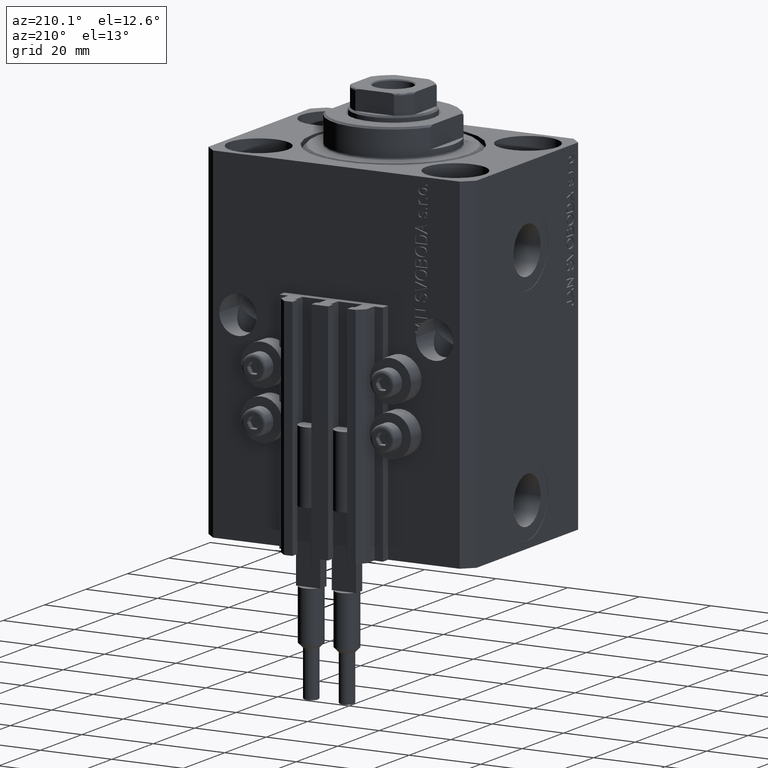
[diagram: clean part render]
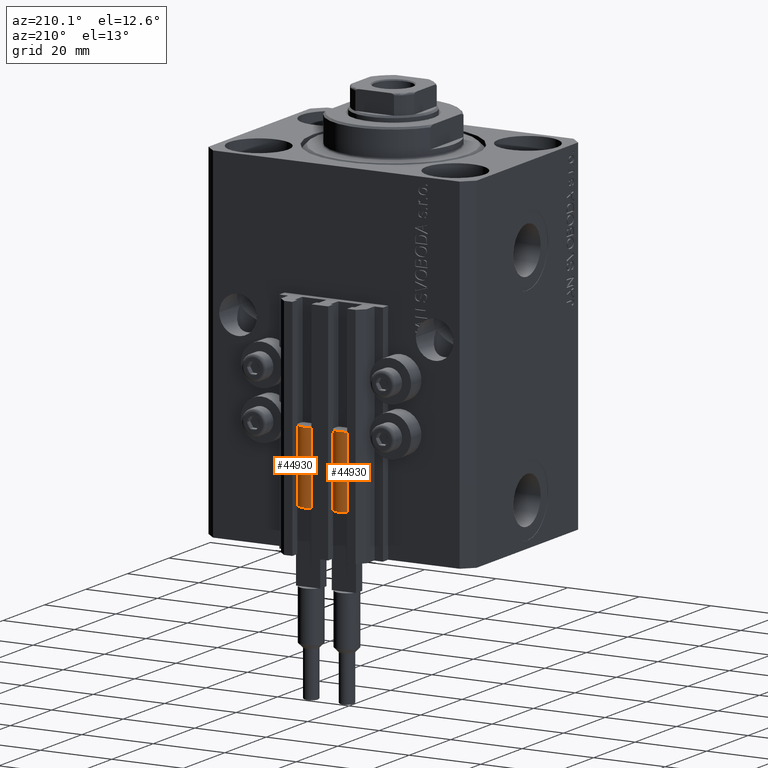
[diagram: same view with one multi-face feature highlighted, each face labeled with its STEP entity id]
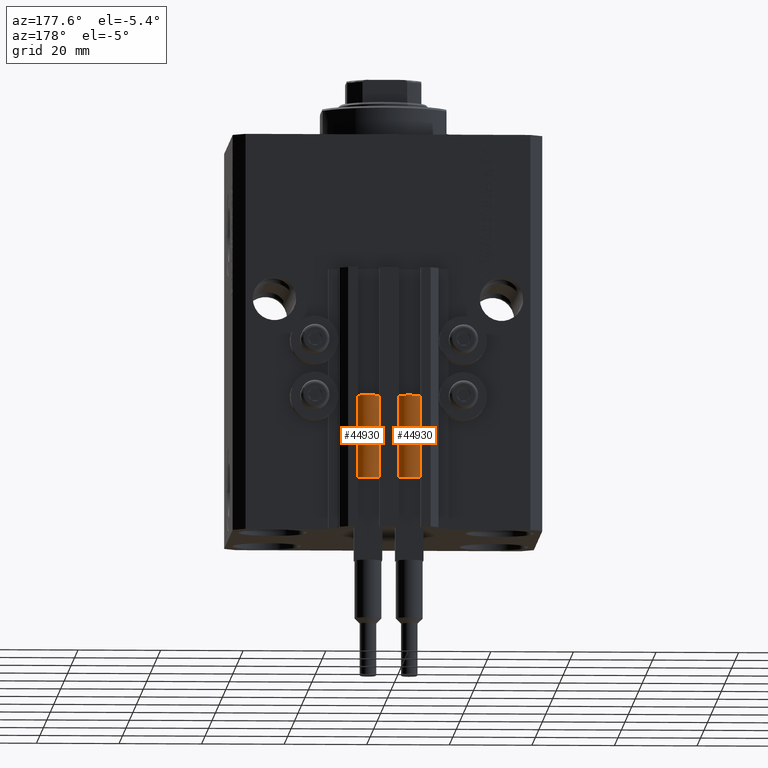
[diagram: same view with one multi-face feature highlighted, each face labeled with its STEP entity id]
A machine part, auxiliary view. The highlighted faces form ONE feature: a constant-radius fillet chain: 2 tangent blend faces with common blend radius 3.4 mm. The faces share edges in the B-rep.
A second angle (auxiliary view) of the same feature is appended — it is thin or edge-on in the first view.
Their STEP definitions:
[1] entity #44930 (Cylinder):
#716 = VERTEX_POINT ( 'NONE', #7705 ) ;
#726 = CIRCLE ( 'NONE', #30302, 3.400000000000000355 ) ;
#888 = VERTEX_POINT ( 'NONE', #24924 ) ;
#1338 = ORIENTED_EDGE ( 'NONE', *, *, #34608, .F. ) ;
#1823 = EDGE_CURVE ( 'NONE', #42656, #35309, #20357, .T. ) ;
#3081 = AXIS2_PLACEMENT_3D ( 'NONE', #9898, #35511, #16252 ) ;
#3598 = VECTOR ( 'NONE', #34260, 1000.000000000000000 ) ;
#3979 = CARTESIAN_POINT ( 'NONE',  ( 0.000000000000000000, 0.000000000000000000, 20.00000000000000000 ) ) ;
#5653 = VERTEX_POINT ( 'NONE', #27251 ) ;
#6998 = AXIS2_PLACEMENT_3D ( 'NONE', #29284, #32940, #21974 ) ;
#7705 = CARTESIAN_POINT ( 'NONE',  ( -3.051229260478471428, 1.500000000000000000, 20.00000000000000000 ) ) ;
#7917 = ORIENTED_EDGE ( 'NONE', *, *, #1823, .T. ) ;
#9693 = EDGE_CURVE ( 'NONE', #888, #5653, #36407, .T. ) ;
#9849 = EDGE_CURVE ( 'NONE', #39856, #716, #726, .T. ) ;
#9898 = CARTESIAN_POINT ( 'NONE',  ( 0.000000000000000000, 0.000000000000000000, 20.00000000000000000 ) ) ;
#14030 = EDGE_CURVE ( 'NONE', #35309, #5653, #41588, .T. ) ;
#14941 = CARTESIAN_POINT ( 'NONE',  ( 0.000000000000000000, 0.000000000000000000, 20.00000000000000000 ) ) ;
#16252 = DIRECTION ( 'NONE',  ( 1.000000000000000000, 0.000000000000000000, 0.000000000000000000 ) ) ;
#16704 = CARTESIAN_POINT ( 'NONE',  ( 3.400000000000000355, 4.163799117101001052E-16, 20.00000000000000000 ) ) ;
#18393 = CIRCLE ( 'NONE', #19947, 3.400000000000000355 ) ;
#19318 = CIRCLE ( 'NONE', #3081, 3.400000000000000355 ) ;
#19549 = DIRECTION ( 'NONE',  ( 1.000000000000000000, 0.000000000000000000, 0.000000000000000000 ) ) ;
#19947 = AXIS2_PLACEMENT_3D ( 'NONE', #3979, #22737, #47844 ) ;
#20160 = CARTESIAN_POINT ( 'NONE',  ( 3.400000000000000355, 4.163799117101001052E-16, 0.000000000000000000 ) ) ;
#20212 = VECTOR ( 'NONE', #47116, 1000.000000000000000 ) ;
#20357 = LINE ( 'NONE', #16704, #3598 ) ;
#21974 = DIRECTION ( 'NONE',  ( -1.000000000000000000, 0.000000000000000000, 0.000000000000000000 ) ) ;
#22737 = DIRECTION ( 'NONE',  ( 0.000000000000000000, 0.000000000000000000, 1.000000000000000000 ) ) ;
#23276 = EDGE_LOOP ( 'NONE', ( #24053, #7917, #35939, #39375, #1338, #47314 ) ) ;
#23849 = FACE_OUTER_BOUND ( 'NONE', #23276, .T. ) ;
#24053 = ORIENTED_EDGE ( 'NONE', *, *, #41741, .F. ) ;
#24924 = CARTESIAN_POINT ( 'NONE',  ( -3.399999999999999467, -4.915049848600952119E-16, 20.00000000000000000 ) ) ;
#25100 = DIRECTION ( 'NONE',  ( 0.000000000000000000, 0.000000000000000000, 1.000000000000000000 ) ) ;
#25339 = CARTESIAN_POINT ( 'NONE',  ( 0.000000000000000000, 0.000000000000000000, 0.000000000000000000 ) ) ;
#27251 = CARTESIAN_POINT ( 'NONE',  ( -3.400000000000000355, 0.000000000000000000, 0.000000000000000000 ) ) ;
#27378 = CARTESIAN_POINT ( 'NONE',  ( 3.051229260478471428, 1.500000000000000000, 20.00000000000000000 ) ) ;
#29284 = CARTESIAN_POINT ( 'NONE',  ( 0.000000000000000000, 0.000000000000000000, 20.00000000000000000 ) ) ;
#29323 = CARTESIAN_POINT ( 'NONE',  ( -3.400000000000000355, 0.000000000000000000, 20.00000000000000000 ) ) ;
#29704 = DIRECTION ( 'NONE',  ( 1.000000000000000000, 0.000000000000000000, 0.000000000000000000 ) ) ;
#30302 = AXIS2_PLACEMENT_3D ( 'NONE', #14941, #34173, #19549 ) ;
#32940 = DIRECTION ( 'NONE',  ( -0.000000000000000000, -0.000000000000000000, -1.000000000000000000 ) ) ;
#33060 = AXIS2_PLACEMENT_3D ( 'NONE', #25339, #25100, #29704 ) ;
#33119 = CARTESIAN_POINT ( 'NONE',  ( 3.400000000000000355, 0.000000000000000000, 20.00000000000000000 ) ) ;
#33419 = CYLINDRICAL_SURFACE ( 'NONE', #6998, 3.400000000000000355 ) ;
#34173 = DIRECTION ( 'NONE',  ( 0.000000000000000000, 0.000000000000000000, 1.000000000000000000 ) ) ;
#34260 = DIRECTION ( 'NONE',  ( -0.000000000000000000, -0.000000000000000000, -1.000000000000000000 ) ) ;
#34608 = EDGE_CURVE ( 'NONE', #716, #888, #18393, .T. ) ;
#35309 = VERTEX_POINT ( 'NONE', #20160 ) ;
#35511 = DIRECTION ( 'NONE',  ( 0.000000000000000000, 0.000000000000000000, 1.000000000000000000 ) ) ;
#35939 = ORIENTED_EDGE ( 'NONE', *, *, #14030, .T. ) ;
#36407 = LINE ( 'NONE', #29323, #20212 ) ;
#39375 = ORIENTED_EDGE ( 'NONE', *, *, #9693, .F. ) ;
#39856 = VERTEX_POINT ( 'NONE', #27378 ) ;
#41588 = CIRCLE ( 'NONE', #33060, 3.400000000000000355 ) ;
#41741 = EDGE_CURVE ( 'NONE', #42656, #39856, #19318, .T. ) ;
#42656 = VERTEX_POINT ( 'NONE', #33119 ) ;
#44930 = ADVANCED_FACE ( 'NONE', ( #23849 ), #33419, .T. ) ;
#47116 = DIRECTION ( 'NONE',  ( -0.000000000000000000, -0.000000000000000000, -1.000000000000000000 ) ) ;
#47314 = ORIENTED_EDGE ( 'NONE', *, *, #9849, .F. ) ;
#47844 = DIRECTION ( 'NONE',  ( 1.000000000000000000, 0.000000000000000000, 0.000000000000000000 ) ) ;
[2] entity #44930 (Cylinder):
#716 = VERTEX_POINT ( 'NONE', #7705 ) ;
#726 = CIRCLE ( 'NONE', #30302, 3.400000000000000355 ) ;
#888 = VERTEX_POINT ( 'NONE', #24924 ) ;
#1338 = ORIENTED_EDGE ( 'NONE', *, *, #34608, .F. ) ;
#1823 = EDGE_CURVE ( 'NONE', #42656, #35309, #20357, .T. ) ;
#3081 = AXIS2_PLACEMENT_3D ( 'NONE', #9898, #35511, #16252 ) ;
#3598 = VECTOR ( 'NONE', #34260, 1000.000000000000000 ) ;
#3979 = CARTESIAN_POINT ( 'NONE',  ( 0.000000000000000000, 0.000000000000000000, 20.00000000000000000 ) ) ;
#5653 = VERTEX_POINT ( 'NONE', #27251 ) ;
#6998 = AXIS2_PLACEMENT_3D ( 'NONE', #29284, #32940, #21974 ) ;
#7705 = CARTESIAN_POINT ( 'NONE',  ( -3.051229260478471428, 1.500000000000000000, 20.00000000000000000 ) ) ;
#7917 = ORIENTED_EDGE ( 'NONE', *, *, #1823, .T. ) ;
#9693 = EDGE_CURVE ( 'NONE', #888, #5653, #36407, .T. ) ;
#9849 = EDGE_CURVE ( 'NONE', #39856, #716, #726, .T. ) ;
#9898 = CARTESIAN_POINT ( 'NONE',  ( 0.000000000000000000, 0.000000000000000000, 20.00000000000000000 ) ) ;
#14030 = EDGE_CURVE ( 'NONE', #35309, #5653, #41588, .T. ) ;
#14941 = CARTESIAN_POINT ( 'NONE',  ( 0.000000000000000000, 0.000000000000000000, 20.00000000000000000 ) ) ;
#16252 = DIRECTION ( 'NONE',  ( 1.000000000000000000, 0.000000000000000000, 0.000000000000000000 ) ) ;
#16704 = CARTESIAN_POINT ( 'NONE',  ( 3.400000000000000355, 4.163799117101001052E-16, 20.00000000000000000 ) ) ;
#18393 = CIRCLE ( 'NONE', #19947, 3.400000000000000355 ) ;
#19318 = CIRCLE ( 'NONE', #3081, 3.400000000000000355 ) ;
#19549 = DIRECTION ( 'NONE',  ( 1.000000000000000000, 0.000000000000000000, 0.000000000000000000 ) ) ;
#19947 = AXIS2_PLACEMENT_3D ( 'NONE', #3979, #22737, #47844 ) ;
#20160 = CARTESIAN_POINT ( 'NONE',  ( 3.400000000000000355, 4.163799117101001052E-16, 0.000000000000000000 ) ) ;
#20212 = VECTOR ( 'NONE', #47116, 1000.000000000000000 ) ;
#20357 = LINE ( 'NONE', #16704, #3598 ) ;
#21974 = DIRECTION ( 'NONE',  ( -1.000000000000000000, 0.000000000000000000, 0.000000000000000000 ) ) ;
#22737 = DIRECTION ( 'NONE',  ( 0.000000000000000000, 0.000000000000000000, 1.000000000000000000 ) ) ;
#23276 = EDGE_LOOP ( 'NONE', ( #24053, #7917, #35939, #39375, #1338, #47314 ) ) ;
#23849 = FACE_OUTER_BOUND ( 'NONE', #23276, .T. ) ;
#24053 = ORIENTED_EDGE ( 'NONE', *, *, #41741, .F. ) ;
#24924 = CARTESIAN_POINT ( 'NONE',  ( -3.399999999999999467, -4.915049848600952119E-16, 20.00000000000000000 ) ) ;
#25100 = DIRECTION ( 'NONE',  ( 0.000000000000000000, 0.000000000000000000, 1.000000000000000000 ) ) ;
#25339 = CARTESIAN_POINT ( 'NONE',  ( 0.000000000000000000, 0.000000000000000000, 0.000000000000000000 ) ) ;
#27251 = CARTESIAN_POINT ( 'NONE',  ( -3.400000000000000355, 0.000000000000000000, 0.000000000000000000 ) ) ;
#27378 = CARTESIAN_POINT ( 'NONE',  ( 3.051229260478471428, 1.500000000000000000, 20.00000000000000000 ) ) ;
#29284 = CARTESIAN_POINT ( 'NONE',  ( 0.000000000000000000, 0.000000000000000000, 20.00000000000000000 ) ) ;
#29323 = CARTESIAN_POINT ( 'NONE',  ( -3.400000000000000355, 0.000000000000000000, 20.00000000000000000 ) ) ;
#29704 = DIRECTION ( 'NONE',  ( 1.000000000000000000, 0.000000000000000000, 0.000000000000000000 ) ) ;
#30302 = AXIS2_PLACEMENT_3D ( 'NONE', #14941, #34173, #19549 ) ;
#32940 = DIRECTION ( 'NONE',  ( -0.000000000000000000, -0.000000000000000000, -1.000000000000000000 ) ) ;
#33060 = AXIS2_PLACEMENT_3D ( 'NONE', #25339, #25100, #29704 ) ;
#33119 = CARTESIAN_POINT ( 'NONE',  ( 3.400000000000000355, 0.000000000000000000, 20.00000000000000000 ) ) ;
#33419 = CYLINDRICAL_SURFACE ( 'NONE', #6998, 3.400000000000000355 ) ;
#34173 = DIRECTION ( 'NONE',  ( 0.000000000000000000, 0.000000000000000000, 1.000000000000000000 ) ) ;
#34260 = DIRECTION ( 'NONE',  ( -0.000000000000000000, -0.000000000000000000, -1.000000000000000000 ) ) ;
#34608 = EDGE_CURVE ( 'NONE', #716, #888, #18393, .T. ) ;
#35309 = VERTEX_POINT ( 'NONE', #20160 ) ;
#35511 = DIRECTION ( 'NONE',  ( 0.000000000000000000, 0.000000000000000000, 1.000000000000000000 ) ) ;
#35939 = ORIENTED_EDGE ( 'NONE', *, *, #14030, .T. ) ;
#36407 = LINE ( 'NONE', #29323, #20212 ) ;
#39375 = ORIENTED_EDGE ( 'NONE', *, *, #9693, .F. ) ;
#39856 = VERTEX_POINT ( 'NONE', #27378 ) ;
#41588 = CIRCLE ( 'NONE', #33060, 3.400000000000000355 ) ;
#41741 = EDGE_CURVE ( 'NONE', #42656, #39856, #19318, .T. ) ;
#42656 = VERTEX_POINT ( 'NONE', #33119 ) ;
#44930 = ADVANCED_FACE ( 'NONE', ( #23849 ), #33419, .T. ) ;
#47116 = DIRECTION ( 'NONE',  ( -0.000000000000000000, -0.000000000000000000, -1.000000000000000000 ) ) ;
#47314 = ORIENTED_EDGE ( 'NONE', *, *, #9849, .F. ) ;
#47844 = DIRECTION ( 'NONE',  ( 1.000000000000000000, 0.000000000000000000, 0.000000000000000000 ) ) ;